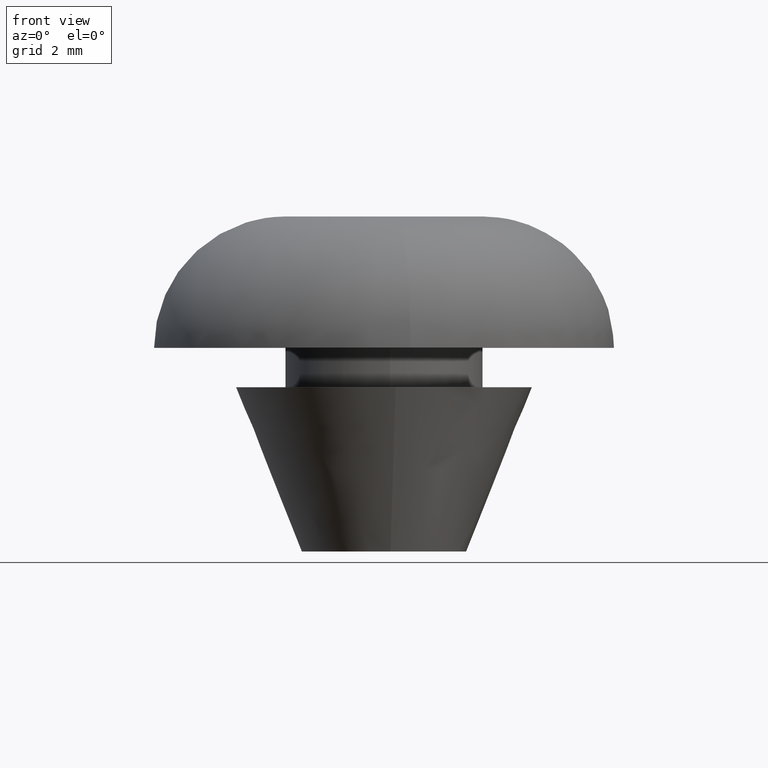
[diagram: clean part render]
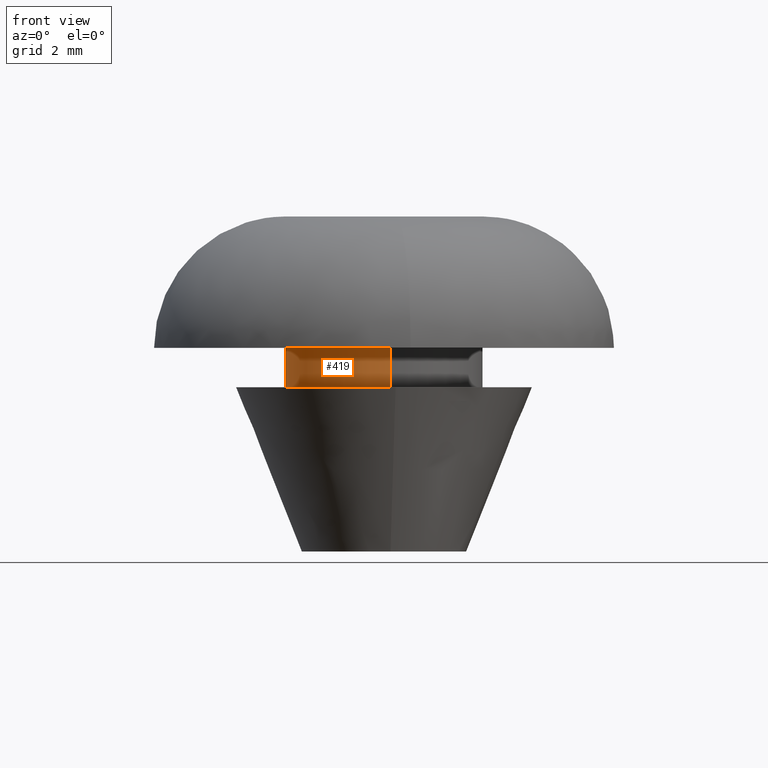
[diagram: same view with one face highlighted and labeled with its STEP entity id]
A machine part, front view. The second image highlights one B-rep face of the part: STEP entity #419.
In plain terms, the highlighted face is a freeform B-spline surface patch.
Its self-contained STEP definition (entity closure, byte-faithful):
#256=CARTESIAN_POINT('',(-0.354102375368443,2.979028618150271,6.199999999999999));
#257=VERTEX_POINT('',#256);
#275=CARTESIAN_POINT('',(0.183141187636564,-2.994404666268633,6.199999999999935));
#276=VERTEX_POINT('',#275);
#290=CARTESIAN_POINT('',(0.183141240990780,-2.994404663005506,5.0));
#291=VERTEX_POINT('',#290);
#292=CARTESIAN_POINT('',(0.183141187636564,-2.994404666268633,6.199999999999935));
#293=CARTESIAN_POINT('',(0.183141240990780,-2.994404663005506,5.0));
#294=QUASI_UNIFORM_CURVE('',1,(#292,#293),.UNSPECIFIED.,.F.,.U.);
#295=EDGE_CURVE('',#276,#291,#294,.T.);
#312=CARTESIAN_POINT('',(-0.354102379321857,2.979028617680349,5.0));
#313=VERTEX_POINT('',#312);
#329=CARTESIAN_POINT('',(-0.354102375368443,2.979028618150271,6.199999999999999));
#330=CARTESIAN_POINT('',(-0.354102379321857,2.979028617680349,5.0));
#331=QUASI_UNIFORM_CURVE('',1,(#329,#330),.UNSPECIFIED.,.F.,.U.);
#332=EDGE_CURVE('',#257,#313,#331,.T.);
#337=CARTESIAN_POINT('',(0.183145618604571,-2.994404395265600,6.230000000000001));
#338=CARTESIAN_POINT('',(-2.811258776661029,-3.177550013870171,6.230000000000003));
#339=CARTESIAN_POINT('',(-2.994404395265600,-0.183145618604571,6.230000000000001));
#340=CARTESIAN_POINT('',(-3.167358590197582,2.644630472518504,6.230000000000001));
#341=CARTESIAN_POINT('',(-0.354102703970275,2.979028579091000,6.230000000000003));
#342=CARTESIAN_POINT('',(0.183145618604571,-2.994404395265600,4.969249999999999));
#343=CARTESIAN_POINT('',(-2.811258776661029,-3.177550013870171,4.969249999999999));
#344=CARTESIAN_POINT('',(-2.994404395265600,-0.183145618604571,4.969249999999999));
#345=CARTESIAN_POINT('',(-3.167358590197582,2.644630472518504,4.969249999999999));
#346=CARTESIAN_POINT('',(-0.354102703970275,2.979028579091000,4.969249999999999));
#354=(BOUNDED_SURFACE()B_SPLINE_SURFACE(2,1,((#337,#342),(#338,#343),(#339,#344),(#340,#345),(#341,#346)),.UNSPECIFIED.,.F.,.F.,.U.)B_SPLINE_SURFACE_WITH_KNOTS((3,2,3),(2,2),(0.0,4.970562748477139,9.742302987015194),(0.0,1.0),.UNSPECIFIED.)GEOMETRIC_REPRESENTATION_ITEM()RATIONAL_B_SPLINE_SURFACE(((1.0,1.0),(0.707106781186548,0.707106781186548),(1.0,1.0),(0.718822509939086,0.718822509939086),(0.977505800795127,0.977505800795127)))REPRESENTATION_ITEM('')SURFACE());
#355=CARTESIAN_POINT('',(-3.0,0.0,6.200000000000000));
#356=VERTEX_POINT('',#355);
#357=CARTESIAN_POINT('',(-3.0,0.0,6.200000000000000));
#358=CARTESIAN_POINT('',(-3.000000000000000,2.664524169812923,6.200000000000002));
#359=CARTESIAN_POINT('',(-0.354102375368443,2.979028618150271,6.199999999999999));
#367=(BOUNDED_CURVE()B_SPLINE_CURVE(2,(#357,#358,#359),.UNSPECIFIED.,.F.,.U.)B_SPLINE_CURVE_WITH_KNOTS((3,3),(0.0,0.229562510799462),.UNSPECIFIED.)CURVE()GEOMETRIC_REPRESENTATION_ITEM()RATIONAL_B_SPLINE_CURVE((1.0,0.731050789172191,0.956026827265707))REPRESENTATION_ITEM(''));
#368=EDGE_CURVE('',#356,#257,#367,.T.);
#369=ORIENTED_EDGE('',*,*,#368,.T.);
#370=ORIENTED_EDGE('',*,*,#332,.T.);
#371=CARTESIAN_POINT('',(-3.0,0.0,5.0));
#372=VERTEX_POINT('',#371);
#373=CARTESIAN_POINT('',(-3.0,0.0,5.0));
#374=CARTESIAN_POINT('',(-3.000000000000000,2.664524162691058,4.999999999999999));
#375=CARTESIAN_POINT('',(-0.354102379321857,2.979028617680350,5.0));
#383=(BOUNDED_CURVE()B_SPLINE_CURVE(2,(#373,#374,#375),.UNSPECIFIED.,.F.,.U.)B_SPLINE_CURVE_WITH_KNOTS((3,3),(0.0,0.229562510350900),.UNSPECIFIED.)CURVE()GEOMETRIC_REPRESENTATION_ITEM()RATIONAL_B_SPLINE_CURVE((1.0,0.731050789697714,0.956026826386506))REPRESENTATION_ITEM(''));
#384=EDGE_CURVE('',#372,#313,#383,.T.);
#385=ORIENTED_EDGE('',*,*,#384,.F.);
#386=CARTESIAN_POINT('',(0.183141240990780,-2.994404663005506,5.0));
#387=CARTESIAN_POINT('',(0.091656094951915,-3.000000000000000,5.0));
#388=CARTESIAN_POINT('',(0.0,-3.0,5.0));
#389=CARTESIAN_POINT('',(-3.0,-3.0,5.000000000000001));
#390=CARTESIAN_POINT('',(-3.0,0.0,5.0));
#398=(BOUNDED_CURVE()B_SPLINE_CURVE(2,(#386,#387,#388,#389,#390),.UNSPECIFIED.,.F.,.U.)B_SPLINE_CURVE_WITH_KNOTS((3,2,3),(0.739333214493585,0.750000000000000,1.0),.UNSPECIFIED.)CURVE()GEOMETRIC_REPRESENTATION_ITEM()RATIONAL_B_SPLINE_CURVE((0.976072582297030,0.987503083434533,1.0,0.707106781186548,1.0))REPRESENTATION_ITEM(''));
#399=EDGE_CURVE('',#291,#372,#398,.T.);
#400=ORIENTED_EDGE('',*,*,#399,.F.);
#401=ORIENTED_EDGE('',*,*,#295,.F.);
#402=CARTESIAN_POINT('',(0.183141187636564,-2.994404666268632,6.199999999999935));
#403=CARTESIAN_POINT('',(0.091656068200012,-3.000000000000000,6.199999999999999));
#404=CARTESIAN_POINT('',(0.0,-3.0,6.200000000000000));
#405=CARTESIAN_POINT('',(-3.0,-3.0,6.200000000000000));
#406=CARTESIAN_POINT('',(-3.0,0.0,6.200000000000000));
#414=(BOUNDED_CURVE()B_SPLINE_CURVE(2,(#402,#403,#404,#405,#406),.UNSPECIFIED.,.F.,.U.)B_SPLINE_CURVE_WITH_KNOTS((3,2,3),(0.739333217568020,0.750000000000000,1.0),.UNSPECIFIED.)CURVE()GEOMETRIC_REPRESENTATION_ITEM()RATIONAL_B_SPLINE_CURVE((0.976072588886144,0.987503087036458,1.0,0.707106781186548,1.0))REPRESENTATION_ITEM(''));
#415=EDGE_CURVE('',#276,#356,#414,.T.);
#416=ORIENTED_EDGE('',*,*,#415,.T.);
#417=EDGE_LOOP('',(#369,#370,#385,#400,#401,#416));
#418=FACE_OUTER_BOUND('',#417,.T.);
#419=ADVANCED_FACE('',(#418),#354,.T.);